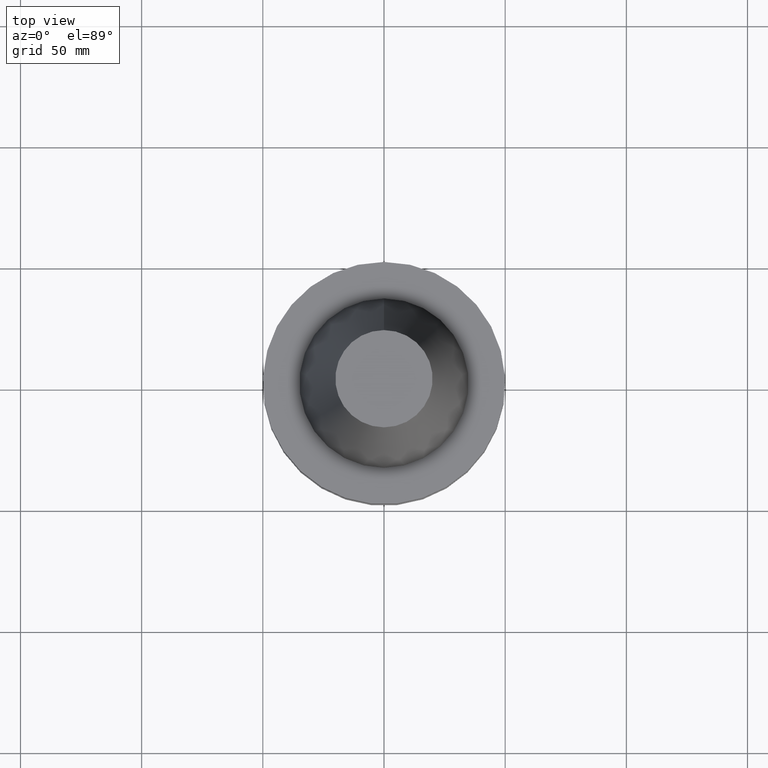
[diagram: clean part render]
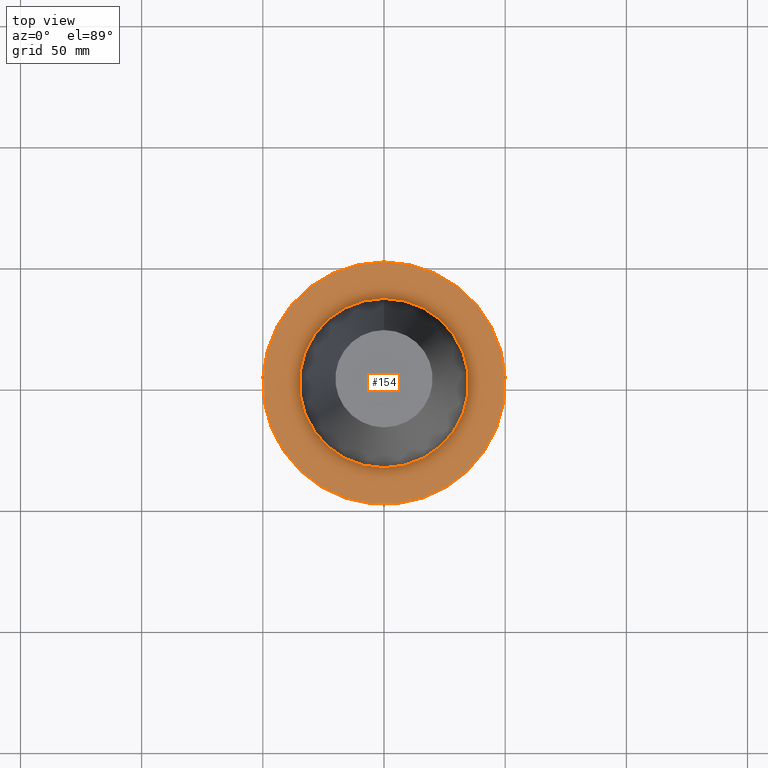
[diagram: same view with one face highlighted and labeled with its STEP entity id]
A machine part, top view. The second image highlights one B-rep face of the part: STEP entity #154.
In plain terms, the highlighted planar face has unit normal (-0, -0, 1).
Its self-contained STEP definition (entity closure, byte-faithful):
#81=EDGE_CURVE('Unnamed[1]',#210,#210,#211,.T.);
#148=EDGE_CURVE('Unnamed[1]',#313,#313,#314,.T.);
#154=ADVANCED_FACE('Unnamed[1]',(#321,#322),#323,.T.);
#210=VERTEX_POINT('',#388);
#211=CIRCLE('',#389,50.0);
#313=VERTEX_POINT('',#517);
#314=CIRCLE('',#518,34.925);
#321=FACE_BOUND('',#527,.T.);
#322=FACE_OUTER_BOUND('',#528,.T.);
#323=PLANE('',#529);
#388=CARTESIAN_POINT('',(9.18485099360509E-017,50.0,-1.49999999999999));
#389=AXIS2_PLACEMENT_3D('',#591,#592,#593);
#517=CARTESIAN_POINT('',(9.18485099360511E-017,34.925,-1.5));
#518=AXIS2_PLACEMENT_3D('',#704,#705,#706);
#527=EDGE_LOOP('',(#713));
#528=EDGE_LOOP('',(#714));
#529=AXIS2_PLACEMENT_3D('',#715,#716,#717);
#591=CARTESIAN_POINT('',(9.18485099360515E-017,1.58503636865388E-014,-1.5));
#592=DIRECTION('',(-6.12323399573677E-017,-2.72265846766671E-017,1.0));
#593=DIRECTION('',(-6.49430021956856E-033,1.0,2.72265846766671E-017));
#704=CARTESIAN_POINT('',(9.18485099360515E-017,1.58503636865388E-014,-1.5));
#705=DIRECTION('',(-6.12323399573677E-017,-2.72265846766536E-017,1.0));
#706=DIRECTION('',(-6.4943002195703E-033,1.0,2.72265846766536E-017));
#713=ORIENTED_EDGE('',*,*,#148,.F.);
#714=ORIENTED_EDGE('',*,*,#81,.T.);
#715=CARTESIAN_POINT('',(9.1848509936051E-017,42.4625,-1.49999999999999));
#716=DIRECTION('',(-6.12323399573677E-017,-1.22464679914735E-016,1.0));
#717=DIRECTION('',(-1.23259516440783E-032,1.0,1.22464679914735E-016));